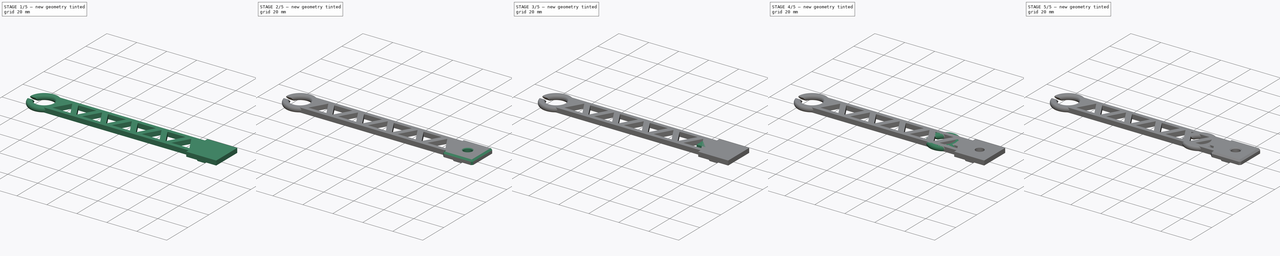
[diagram: build sequence overview — one tinted view per stage of 5, left to right]
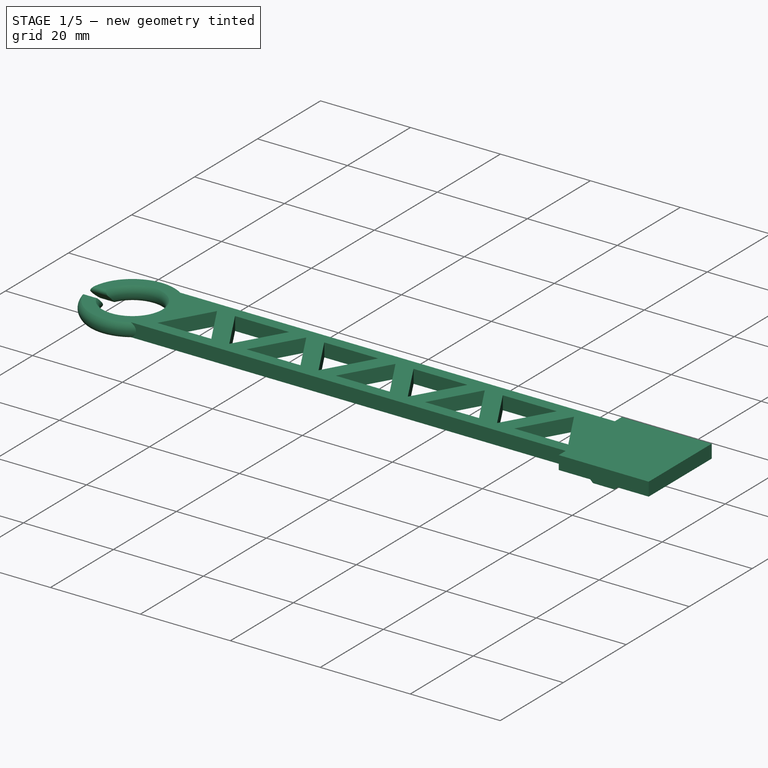
[diagram: stage 1 of 5 — iso view after this stage's code; geometry added in this stage tinted green]
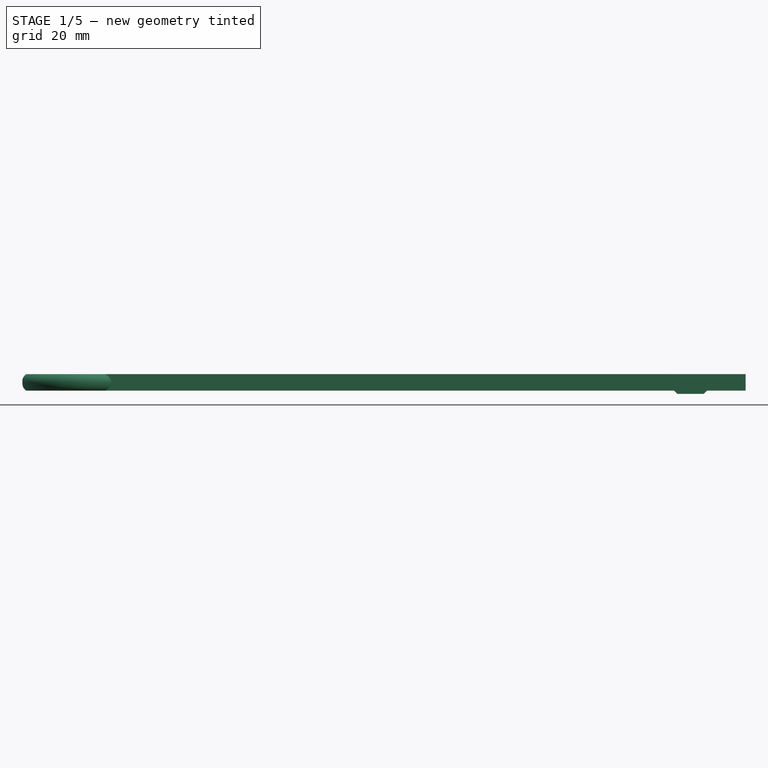
[diagram: stage 1 of 5 — front view after this stage's code; geometry added in this stage tinted green]
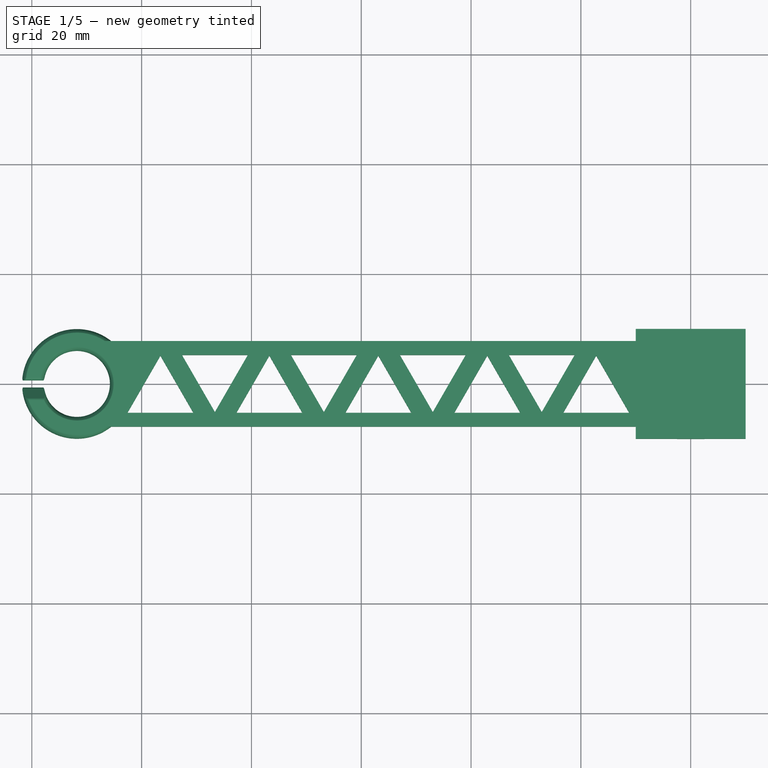
[diagram: stage 1 of 5 — top view after this stage's code; geometry added in this stage tinted green]
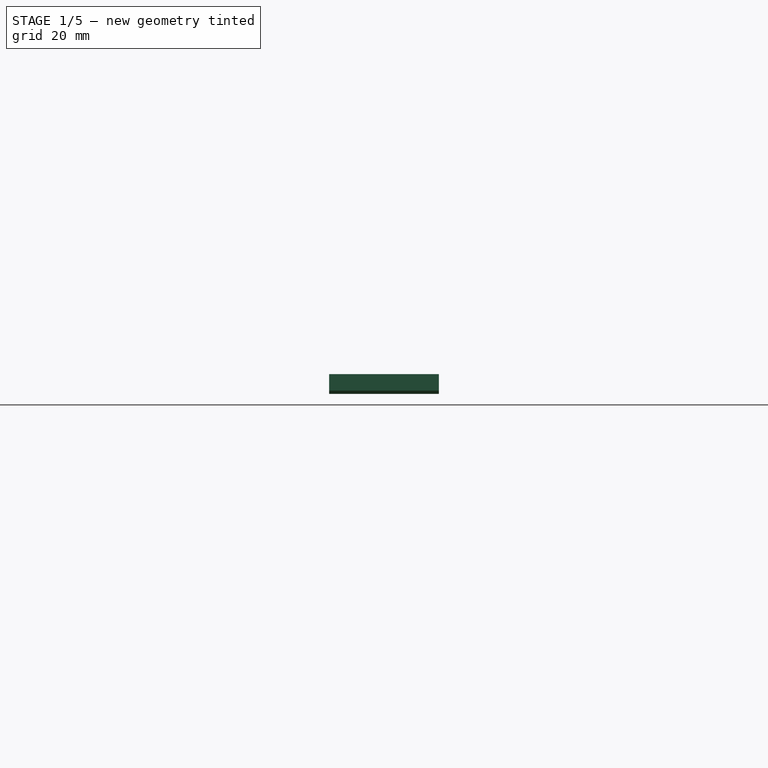
[diagram: stage 1 of 5 — right view after this stage's code; geometry added in this stage tinted green]
FCSTD DOCUMENT  (FreeCAD 0.18R4 (GitTag))
Label: _FilamentGuide2020
License: CreativeCommons Attribution
LicenseURL: http://creativecommons.org/licenses/by/4.0/
objects: Sketcher::SketchObject×12, PartDesign::Chamfer×6, PartDesign::Pad×4, PartDesign::Pocket×4, PartDesign::AdditivePipe×2, PartDesign::Fillet×2, PartDesign::Body×2
note: 42 computed .brp shape members not serialized (recipe doc carries the construction recipe); baked Part::Feature solids carry a one-line shape summary decoded from their .brp

FEATURE [PartDesign::Body] Body  label="FilamentGuide"
  Group = -> [Sketch,Pad,Sketch001,Pad001,Sketch002,Sketch003,AdditivePipe,Sketch004,Pocket,Sketch005,Pocket001,Chamfer,Chamfer001,Fillet,Chamfer002]
  Origin = -> Origin
  Tip = -> Chamfer002
FEATURE [Sketcher::SketchObject] Sketch007
  MapMode = 5
  Placement = pos=(0,0,0) rot=(1,0,0;1.5708rad)
  Support = -> [XZ_Plane001]
  sketch-geometry (8):
    g0: LineSegment StartX=-10 StartY=0 StartZ=0 EndX=-10 EndY=-3 EndZ=0
    g1: LineSegment StartX=-10 StartY=-3 StartZ=0 EndX=-3 EndY=-3 EndZ=0
    g2: LineSegment StartX=-3 StartY=-3 StartZ=0 EndX=-2.4 EndY=-3.6 EndZ=0
    g3: LineSegment StartX=-2.4 StartY=-3.6 StartZ=0 EndX=2.4 EndY=-3.6 EndZ=0
    g4: LineSegment StartX=2.4 StartY=-3.6 StartZ=0 EndX=3 EndY=-3 EndZ=0
    g5: LineSegment StartX=3 StartY=-3 StartZ=0 EndX=10 EndY=-3 EndZ=0
    g6: LineSegment StartX=10 StartY=-3 StartZ=0 EndX=10 EndY=0 EndZ=0
    g7: LineSegment StartX=10 StartY=0 StartZ=0 EndX=-10 EndY=0 EndZ=0
  constraints (22):
    c: PointOnObject(g0,g-1)
    c: Vertical(g0)
    c: Coincident(g0,g1)
    c: Horizontal(g1)
    c: Coincident(g1,g2)
    c: Coincident(g2,g3)
    c: Coincident(g3,g4)
    c: Coincident(g4,g5)
    c: Horizontal(g5)
    c: Coincident(g5,g6)
    c: Vertical(g6)
    c: Coincident(g6,g7)
    c: Coincident(g0,g7)
    c: Symmetric(g0,g6,g-2)
    c: Symmetric(g2,g3,g-2)
    c: DistanceY(g3,g5) = 0.6
    c: DistanceX(g0,g6) = 20
    c: Equal(g1,g5)
    c: Perpendicular(g4,g2)
    c: Angle(g3,g2) = 2.35619
    c: DistanceX(g1,g4) = 6
    c: DistanceY(g0,g0) = 3
FEATURE [Sketcher::SketchObject] Sketch008
  MapMode = 5
  Support = -> [XY_Plane001]
  sketch-geometry (1):
    g0: Circle CenterX=0 CenterY=0 CenterZ=0 NormalX=0 NormalY=0 NormalZ=1 AngleXU=0 Radius=2.7
  constraints (2):
    c: Coincident(g0,g-1)
    c: Diameter(g0) = 5.4
FEATURE [Sketcher::SketchObject] Sketch009
  MapMode = 5
  Support = -> [XY_Plane001]
  sketch-geometry (47):
    g0: LineSegment StartX=-110 StartY=7.8 StartZ=0 EndX=-10 EndY=7.8 EndZ=0
    g1: LineSegment StartX=-10 StartY=7.8 StartZ=0 EndX=-10 EndY=-7.8 EndZ=0
    g2: LineSegment StartX=-10 StartY=-7.8 StartZ=0 EndX=-110 EndY=-7.8 EndZ=0
    g3: LineSegment StartX=-90.575 StartY=-5.2641 StartZ=0 EndX=-96.575 EndY=5.1282 EndZ=0
    g4: LineSegment StartX=-96.575 StartY=5.1282 StartZ=0 EndX=-102.575 EndY=-5.2641 EndZ=0
    g5: LineSegment StartX=-102.575 StartY=-5.2641 StartZ=0 EndX=-90.575 EndY=-5.2641 EndZ=0
    g6: Circle [constr] CenterX=-96.575 CenterY=-1.8 CenterZ=0 NormalX=0 NormalY=0 NormalZ=1 AngleXU=0 Radius=6.9282
    g7: LineSegment StartX=-92.6534 StartY=5.2641 StartZ=0 EndX=-86.6534 EndY=-5.1282 EndZ=0
    g8: LineSegment StartX=-86.6534 StartY=-5.1282 StartZ=0 EndX=-80.6534 EndY=5.2641 EndZ=0
    g9: LineSegment StartX=-80.6534 StartY=5.2641 StartZ=0 EndX=-92.6534 EndY=5.2641 EndZ=0
    g10: Circle [constr] CenterX=-86.6534 CenterY=1.8 CenterZ=0 NormalX=0 NormalY=0 NormalZ=1 AngleXU=0 Radius=6.9282
    g11: LineSegment StartX=-70.7319 StartY=-5.2641 StartZ=0 EndX=-76.7319 EndY=5.1282 EndZ=0
    g12: LineSegment StartX=-76.7319 StartY=5.1282 StartZ=0 EndX=-82.7319 EndY=-5.2641 EndZ=0
    g13: LineSegment StartX=-82.7319 StartY=-5.2641 StartZ=0 EndX=-70.7319 EndY=-5.2641 EndZ=0
    g14: Circle [constr] CenterX=-76.7319 CenterY=-1.8 CenterZ=0 NormalX=0 NormalY=0 NormalZ=1 AngleXU=0 Radius=6.9282
    g15: LineSegment [constr] StartX=-103.983 StartY=-1.8 StartZ=0 EndX=-10 EndY=-1.8 EndZ=0
    g16: LineSegment [constr] StartX=-103.983 StartY=1.8 StartZ=0 EndX=-10 EndY=1.8 EndZ=0
    g17: ArcOfCircle CenterX=-111.778 CenterY=0 CenterZ=0 NormalX=0 NormalY=0 NormalZ=1 AngleXU=0 Radius=8 StartAngle=4.93646 EndAngle=7.62991
    g18: LineSegment StartX=-72.8104 StartY=5.2641 StartZ=0 EndX=-66.8104 EndY=-5.1282 EndZ=0
    g19: LineSegment StartX=-66.8104 StartY=-5.1282 StartZ=0 EndX=-60.8104 EndY=5.2641 EndZ=0
    g20: LineSegment StartX=-60.8104 StartY=5.2641 StartZ=0 EndX=-72.8104 EndY=5.2641 EndZ=0
    g21: Circle [constr] CenterX=-66.8104 CenterY=1.8 CenterZ=0 NormalX=0 NormalY=0 NormalZ=1 AngleXU=0 Radius=6.9282
    g22: LineSegment StartX=-56.8888 StartY=5.1282 StartZ=0 EndX=-62.8888 EndY=-5.2641 EndZ=0
    g23: LineSegment StartX=-62.8888 StartY=-5.2641 StartZ=0 EndX=-50.8888 EndY=-5.2641 EndZ=0
    g24: LineSegment StartX=-50.8888 StartY=-5.2641 StartZ=0 EndX=-56.8888 EndY=5.1282 EndZ=0
    g25: Circle [constr] CenterX=-56.8888 CenterY=-1.8 CenterZ=0 NormalX=0 NormalY=0 NormalZ=1 AngleXU=0 Radius=6.9282
    g26: LineSegment StartX=-52.9673 StartY=5.2641 StartZ=0 EndX=-46.9673 EndY=-5.1282 EndZ=0
    g27: LineSegment StartX=-46.9673 StartY=-5.1282 StartZ=0 EndX=-40.9673 EndY=5.2641 EndZ=0
    g28: LineSegment StartX=-40.9673 StartY=5.2641 StartZ=0 EndX=-52.9673 EndY=5.2641 EndZ=0
    g29: Circle [constr] CenterX=-46.9673 CenterY=1.8 CenterZ=0 NormalX=0 NormalY=0 NormalZ=1 AngleXU=0 Radius=6.9282
    g30: LineSegment StartX=-37.0457 StartY=5.1282 StartZ=0 EndX=-43.0457 EndY=-5.2641 EndZ=0
    g31: LineSegment StartX=-43.0457 StartY=-5.2641 StartZ=0 EndX=-31.0457 EndY=-5.2641 EndZ=0
    g32: LineSegment StartX=-31.0457 StartY=-5.2641 StartZ=0 EndX=-37.0457 EndY=5.1282 EndZ=0
    g33: Circle [constr] CenterX=-37.0457 CenterY=-1.8 CenterZ=0 NormalX=0 NormalY=0 NormalZ=1 AngleXU=0 Radius=6.9282
    g34: LineSegment StartX=-33.1242 StartY=5.2641 StartZ=0 EndX=-27.1242 EndY=-5.1282 EndZ=0
    g35: LineSegment StartX=-27.1242 StartY=-5.1282 StartZ=0 EndX=-21.1242 EndY=5.2641 EndZ=0
    g36: LineSegment StartX=-21.1242 StartY=5.2641 StartZ=0 EndX=-33.1242 EndY=5.2641 EndZ=0
    g37: Circle [constr] CenterX=-27.1242 CenterY=1.8 CenterZ=0 NormalX=0 NormalY=0 NormalZ=1 AngleXU=0 Radius=6.9282
    g38: LineSegment StartX=-11.2027 StartY=-5.2641 StartZ=0 EndX=-17.2027 EndY=5.1282 EndZ=0
    g39: LineSegment StartX=-17.2027 StartY=5.1282 StartZ=0 EndX=-23.2027 EndY=-5.2641 EndZ=0
    g40: LineSegment StartX=-23.2027 StartY=-5.2641 StartZ=0 EndX=-11.2027 EndY=-5.2641 EndZ=0
    g41: Circle [constr] CenterX=-17.2027 CenterY=-1.8 CenterZ=0 NormalX=0 NormalY=0 NormalZ=1 AngleXU=0 Radius=6.9282
    g42: GeomPoint X=-103.778 Y=0 Z=0
    g43: GeomPoint X=-99.5357 Y=0 Z=0
    g44: GeomPoint X=-14.2419 Y=0 Z=0
    g45: LineSegment [constr] StartX=-56.8888 StartY=7.8 StartZ=0 EndX=-56.8888 EndY=-7.8 EndZ=0
    g46: GeomPoint X=-10 Y=0 Z=0
  constraints (137):
    c: Coincident(g0,g1)
    c: Coincident(g1,g2)
    c: Horizontal(g0)
    c: Horizontal(g2)
    c: DistanceX(g0,g-1) = 10
    c: DistanceY(g1,g1) = 15.6
    c: Symmetric(g1,g0,g-1)
    c: DistanceX(g0,g0) = 100
    c: Coincident(g3,g4)
    c: Coincident(g4,g5)
    c: Coincident(g5,g3)
    c: Equal(g3,g4)
    c: Equal(g3,g5)
    c: PointOnObject(g3,g6)
    c: PointOnObject(g4,g6)
    c: PointOnObject(g5,g6)
    c: Coincident(g7,g8)
    c: Coincident(g8,g9)
    c: Coincident(g9,g7)
    c: Equal(g7,g8)
    c: Equal(g7,g9)
    c: PointOnObject(g7,g10)
    c: PointOnObject(g8,g10)
    c: PointOnObject(g9,g10)
    c: Coincident(g11,g12)
    c: Coincident(g12,g13)
    c: Coincident(g13,g11)
    c: Equal(g11,g12)
    c: Equal(g11,g13)
    c: PointOnObject(g11,g14)
    c: PointOnObject(g12,g14)
    c: PointOnObject(g13,g14)
    c: Equal(g6,g10)
    c: Equal(g10,g14)
    c: Horizontal(g5)
    c: Horizontal(g9)
    c: Horizontal(g13)
    c: PointOnObject(g15,g1)
    c: Horizontal(g15)
    c: PointOnObject(g6,g15)
    c: PointOnObject(g16,g1)
    c: Horizontal(g16)
    c: Symmetric(g15,g16,g-1)
    c: Coincident(g17,g0)
    c: Coincident(g17,g2)
    c: PointOnObject(g17,g-1)
    c: PointOnObject(g15,g17)
    c: DistanceY(g15,g16) = 3.6
    c: DistanceX(g5,g5) = 12
    c: PointOnObject(g10,g16)
    c: Tangent(g3,g10)
    c: PointOnObject(g14,g15)
    c: Coincident(g18,g19)
    c: Coincident(g19,g20)
    c: Coincident(g20,g18)
    c: Equal(g18,g19)
    c: Equal(g18,g20)
    c: PointOnObject(g18,g21)
    c: PointOnObject(g19,g21)
    c: PointOnObject(g20,g21)
    c: Coincident(g22,g23)
    c: Coincident(g23,g24)
    c: Coincident(g24,g22)
    c: Equal(g22,g23)
    c: Equal(g22,g24)
    c: PointOnObject(g22,g25)
    c: PointOnObject(g23,g25)
    c: PointOnObject(g24,g25)
    c: Coincident(g26,g27)
    c: Coincident(g27,g28)
    c: Coincident(g28,g26)
    c: Equal(g26,g27)
    c: Equal(g26,g28)
    c: PointOnObject(g26,g29)
    c: PointOnObject(g27,g29)
    c: PointOnObject(g28,g29)
    c: Equal(g14,g21)
    c: Equal(g21,g25)
    c: Equal(g25,g29)
    c: Horizontal(g23)
    c: Horizontal(g20)
    c: PointOnObject(g21,g16)
    c: PointOnObject(g25,g15)
    c: PointOnObject(g29,g16)
    c: Tangent(g21,g11)
    c: Tangent(g29,g24)
    c: Tangent(g14,g8)
    c: Tangent(g19,g25)
    c: Coincident(g30,g31)
    c: Coincident(g31,g32)
    c: Coincident(g32,g30)
    c: Equal(g30,g31)
    c: Equal(g30,g32)
    c: PointOnObject(g30,g33)
    c: PointOnObject(g31,g33)
    c: PointOnObject(g32,g33)
    c: Coincident(g34,g35)
    c: Coincident(g35,g36)
    c: Coincident(g36,g34)
    c: Equal(g34,g35)
    c: Equal(g34,g36)
    c: PointOnObject(g34,g37)
    c: PointOnObject(g35,g37)
    c: PointOnObject(g36,g37)
    c: Horizontal(g31)
    c: Horizontal(g36)
    c: PointOnObject(g33,g15)
    c: Tangent(g33,g27)
    c: Equal(g29,g33)
    c: Equal(g33,g37)
    c: PointOnObject(g37,g16)
    c: Tangent(g37,g32)
    c: Horizontal(g28)
    c: Coincident(g38,g39)
    c: Coincident(g39,g40)
    c: Coincident(g40,g38)
    c: Equal(g38,g39)
    c: Equal(g38,g40)
    c: PointOnObject(g38,g41)
    c: PointOnObject(g39,g41)
    c: PointOnObject(g40,g41)
    c: Equal(g37,g41)
    c: Horizontal(g40)
    c: PointOnObject(g41,g15)
    c: Diameter(g17) = 16
    c: Tangent(g41,g35)
    c: PointOnObject(g42,g17)
    c: PointOnObject(g42,g-1)
    c: PointOnObject(g43,g4)
    c: PointOnObject(g43,g-1)
    c: PointOnObject(g44,g38)
    c: PointOnObject(g44,g-1)
    c: PointOnObject(g45,g0)
    c: PointOnObject(g45,g2)
    c: Symmetric(g43,g44,g45)
    c: PointOnObject(g46,g1)
    c: Symmetric(g46,g42,g45)
FEATURE [Sketcher::SketchObject] Sketch006
  AttachmentOffset = pos=(0,0,-1.5) rot=(0,0,1;0rad)
  ExternalGeometry = -> [Sketch009]
  MapMode = 5
  Placement = pos=(0,0,-1.5) rot=(0,0,1;0rad)
  Support = -> [XY_Plane001]
  sketch-geometry (1):
    g0: ArcOfCircle CenterX=-111.778 CenterY=0 CenterZ=0 NormalX=0 NormalY=0 NormalZ=1 AngleXU=0 Radius=8 StartAngle=0 EndAngle=6.28319
  constraints (4):
    c: PointOnObject(g0,g-1)
    c: PointOnObject(g0,g-1)
    c: Diameter(g0) = 16
    c: Coincident(g-3,g0)
FEATURE [Sketcher::SketchObject] Sketch010
  ExternalGeometry = -> [Sketch006]
  MapMode = 5
  Placement = pos=(0,0,0) rot=(1,0,0;1.5708rad)
  Support = -> [XZ_Plane001]
  sketch-geometry (4):
    g0: ArcOfCircle CenterX=-103.778 CenterY=-1.5 CenterZ=0 NormalX=0 NormalY=0 NormalZ=1 AngleXU=0 Radius=2 StartAngle=2.29353 EndAngle=3.98965
    g1: ArcOfCircle CenterX=-103.778 CenterY=-1.5 CenterZ=0 NormalX=0 NormalY=0 NormalZ=1 AngleXU=0 Radius=2 StartAngle=5.43512 EndAngle=7.13125
    g2: LineSegment StartX=-105.101 StartY=-9.286e-13 StartZ=0 EndX=-102.455 EndY=-9.286e-13 EndZ=0
    g3: LineSegment StartX=-102.455 StartY=-3 StartZ=0 EndX=-105.101 EndY=-3 EndZ=0
  constraints (12):
    c: Coincident(g1,g0)
    c: Coincident(g2,g1)
    c: Horizontal(g2)
    c: Coincident(g3,g1)
    c: Horizontal(g3)
    c: Coincident(g3,g0)
    c: Coincident(g2,g0)
    c: Equal(g2,g3)
    c: DistanceY(g0,g0) = 3
    c: Equal(g1,g0)
    c: Diameter(g1) = 4
    c: Coincident(g0,g-3)
FEATURE [Sketcher::SketchObject] Sketch011
  AttachmentOffset = pos=(0,0,-122) rot=(1,0,0;3.14159rad)
  MapMode = 5
  Placement = pos=(-122,2.71e-14,-2.71e-14) rot=(0.57735,0.57735,-0.57735;4.18879rad)
  Support = -> [YZ_Plane001]
  expr: AttachmentOffset.Base.z = (Sketch001.Constraints[7] + 22mm) * -1
  sketch-geometry (19):
    g0: LineSegment StartX=2.59806 StartY=2.82526 StartZ=0 EndX=0.796056 EndY=1.02326 EndZ=0
    g1: LineSegment StartX=-2.59806 StartY=0.174736 StartZ=0 EndX=-0.796056 EndY=1.97674 EndZ=0
    g2: LineSegment StartX=3.02232 StartY=3.001 StartZ=0 EndX=4.901 EndY=3.001 EndZ=0
    g3: LineSegment StartX=4.901 StartY=3.001 StartZ=0 EndX=4.901 EndY=5.001 EndZ=0
    g4: LineSegment StartX=4.901 StartY=5.001 StartZ=0 EndX=-3.099 EndY=5.001 EndZ=0
    g5: LineSegment StartX=-3.099 StartY=5.001 StartZ=0 EndX=-3.099 EndY=3.001 EndZ=0
    g6: LineSegment StartX=-3.099 StartY=3.001 StartZ=0 EndX=-1.22032 EndY=3.001 EndZ=0
    g7: LineSegment StartX=1.22032 StartY=-0.001 StartZ=0 EndX=3.099 EndY=-0.001 EndZ=0
    g8: LineSegment StartX=3.099 StartY=-0.001 StartZ=0 EndX=3.099 EndY=-2.001 EndZ=0
    g9: LineSegment StartX=3.099 StartY=-2.001 StartZ=0 EndX=-4.901 EndY=-2.001 EndZ=0
    g10: LineSegment StartX=-4.901 StartY=-2.001 StartZ=0 EndX=-4.901 EndY=-0.001 EndZ=0
    g11: LineSegment StartX=-4.901 StartY=-0.001 StartZ=0 EndX=-3.02232 EndY=-0.001 EndZ=0
    g12: ArcOfCircle CenterX=-1.22032 CenterY=2.401 CenterZ=0 NormalX=0 NormalY=0 NormalZ=1 AngleXU=0 Radius=0.6 StartAngle=5.49779 EndAngle=7.85398
    g13: ArcOfCircle CenterX=3.02232 CenterY=2.401 CenterZ=0 NormalX=0 NormalY=0 NormalZ=1 AngleXU=0 Radius=0.6 StartAngle=1.5708 EndAngle=2.35619
    g14: ArcOfCircle CenterX=1.22032 CenterY=0.599 CenterZ=0 NormalX=0 NormalY=0 NormalZ=1 AngleXU=0 Radius=0.6 StartAngle=2.35619 EndAngle=4.71239
    g15: ArcOfCircle CenterX=-3.02232 CenterY=0.599 CenterZ=0 NormalX=0 NormalY=0 NormalZ=1 AngleXU=0 Radius=0.6 StartAngle=4.71239 EndAngle=5.49779
    g16: LineSegment [constr] StartX=0.796056 StartY=1.02326 StartZ=0 EndX=-0.476736 EndY=2.29606 EndZ=0
    g17: LineSegment [constr] StartX=-1.22032 StartY=2.401 StartZ=0 EndX=1.22032 EndY=0.599 EndZ=0
    g18: GeomPoint X=0 Y=1.5 Z=0
  constraints (50):
    c: Parallel(g1,g0)
    c: Angle(g-1,g0) = 0.785398
    c: Horizontal(g2)
    c: Coincident(g2,g3)
    c: Vertical(g3)
    c: Coincident(g3,g4)
    c: Horizontal(g4)
    c: Coincident(g4,g5)
    c: Coincident(g5,g6)
    c: Horizontal(g6)
    c: Vertical(g5)
    c: Equal(g3,g5)
    c: Horizontal(g7)
    c: Coincident(g7,g8)
    c: Vertical(g8)
    c: Coincident(g8,g9)
    c: Horizontal(g9)
    c: Coincident(g9,g10)
    c: Vertical(g10)
    c: Coincident(g10,g11)
    c: Equal(g3,g8)
    c: Equal(g8,g10)
    c: Equal(g6,g2)
    c: Equal(g2,g7)
    c: Equal(g7,g11)
    c: Equal(g9,g4)
    c: DistanceY(g10,g5) = 3.002
    c: Tangent(g6,g12) = 1.5708
    c: Tangent(g1,g12) = -1.5708
    c: Tangent(g0,g13) = -1.5708
    c: Tangent(g2,g13) = 1.5708
    c: Tangent(g7,g14) = -1.5708
    c: Tangent(g0,g14) = -1.5708
    c: Tangent(g1,g15) = -1.5708
    c: Tangent(g11,g15) = -1.5708
    c: Horizontal(g11)
    c: Coincident(g16,g0)
    c: PointOnObject(g16,g1)
    c: Perpendicular(g16,g1)
    c: Equal(g12,g13)
    c: Equal(g13,g14)
    c: Coincident(g17,g12)
    c: Coincident(g17,g14)
    c: Symmetric(g14,g12,g18)
    c: PointOnObject(g18,g-2)
    c: DistanceY(g-1,g18) = 1.5
    c: Distance(g16) = 1.8
    c: DistanceX(g4,g4) = 8
    c: DistanceY(g3,g3) = 2
    c: Radius(g13) = 0.6
FEATURE [PartDesign::Pad] Pad003
  Length = 20
  Length2 = 100
  Midplane = true
  Placement = pos=(0,0,0) rot=(1,0,0;1.5708rad)
  Profile = -> Sketch007
  Type = 0
FEATURE [PartDesign::Pad] Pad002
  BaseFeature = -> Pad003
  Length = 3
  Length2 = 100
  Placement = pos=(0,0,0) rot=(1,0,0;1.5708rad)
  Profile = -> Sketch009
  Reversed = true
  Type = 0
FEATURE [PartDesign::AdditivePipe] AdditivePipe001
  AuxilleryCurvelinear = true
  AuxillerySpineTangent = false
  BaseFeature = -> Pad002
  Binormal = (0,0,0)
  Mode = 0
  Placement = pos=(0,0,0) rot=(1,0,0;1.5708rad)
  Profile = -> Sketch010
  Spine = -> Sketch006
  SpineTangent = false
  Transformation = 0
  Transition = 0
FEATURE [PartDesign::Pocket] Pocket003
  BaseFeature = -> AdditivePipe001
  Length = 6
  Length2 = 100
  Placement = pos=(0,0,0) rot=(1,0,0;1.5708rad)
  Profile = -> Sketch011
  Type = 0
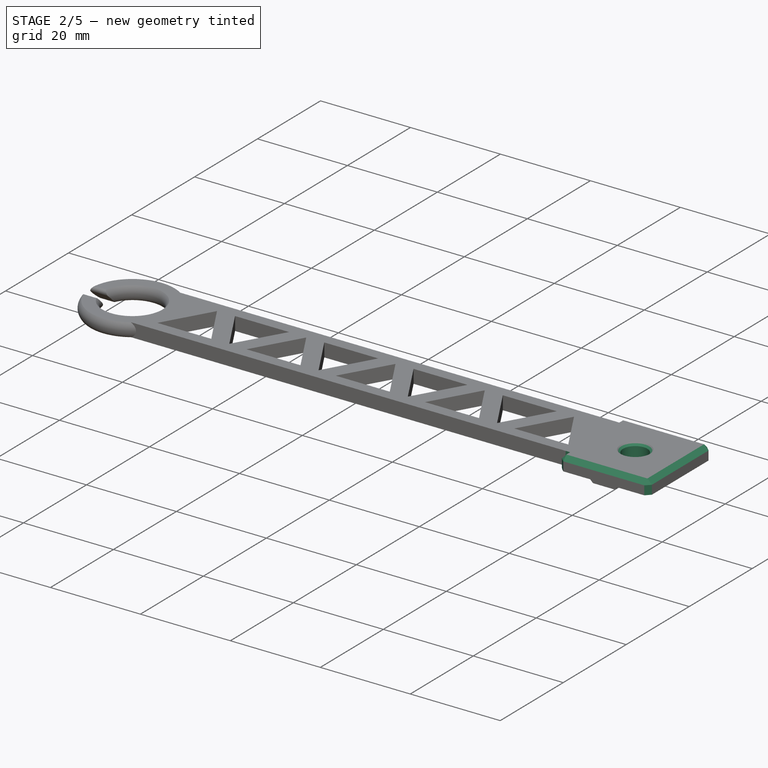
[diagram: stage 2 of 5 — iso view after this stage's code; geometry added in this stage tinted green]
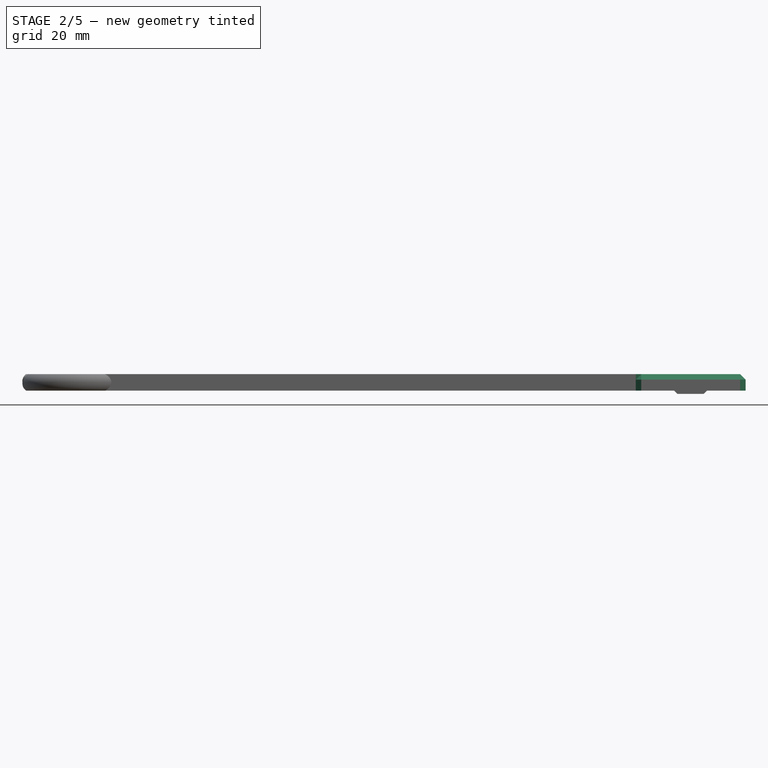
[diagram: stage 2 of 5 — front view after this stage's code; geometry added in this stage tinted green]
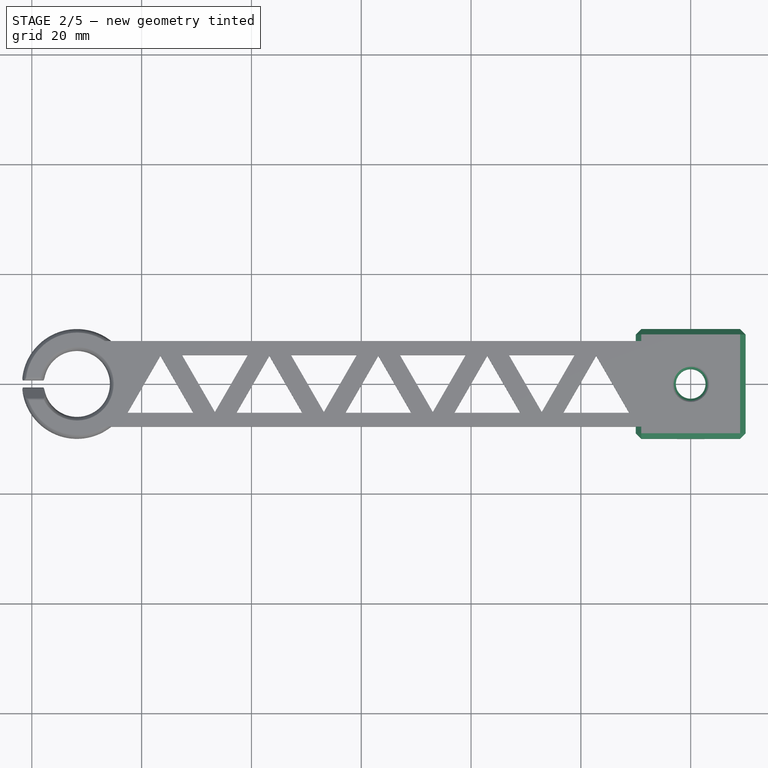
[diagram: stage 2 of 5 — top view after this stage's code; geometry added in this stage tinted green]
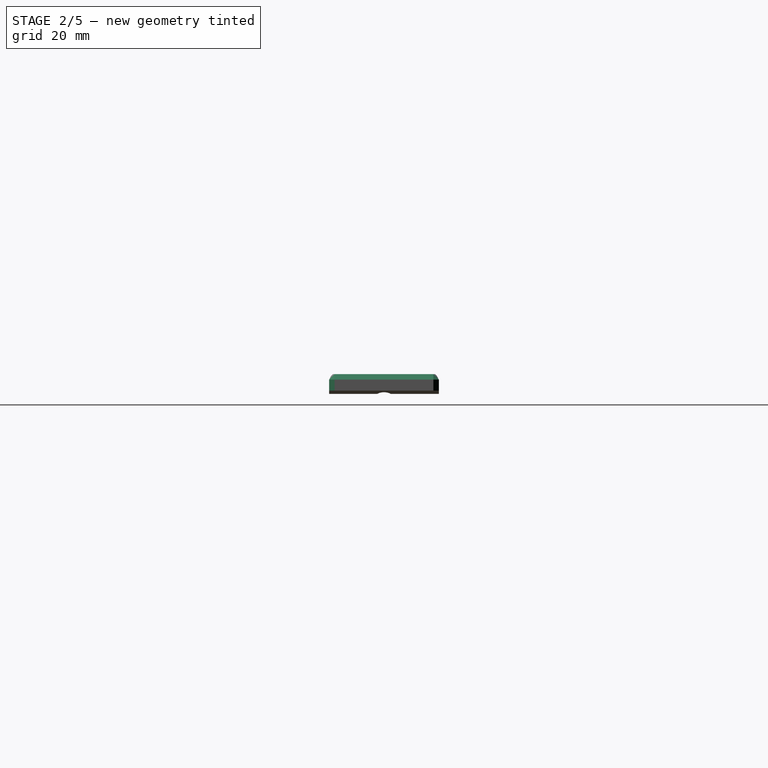
[diagram: stage 2 of 5 — right view after this stage's code; geometry added in this stage tinted green]
FEATURE [PartDesign::Pocket] Pocket002
  BaseFeature = -> Pocket003
  Length = 5
  Length2 = 100
  Placement = pos=(0,0,0) rot=(1,0,0;1.5708rad)
  Profile = -> Sketch008
  Type = 1
FEATURE [PartDesign::Chamfer] Chamfer005
  Base = -> Pocket002 [Edge23]
  BaseFeature = -> Pocket002
  Placement = pos=(0,0,0) rot=(1,0,0;1.5708rad)
  Size = 0.6
FEATURE [PartDesign::Chamfer] Chamfer003
  Base = -> Chamfer005 [Edge19,Edge13,Edge11,Edge12,Edge2,Edge4,Edge3,Edge5,Edge6]
  BaseFeature = -> Chamfer005
  Placement = pos=(0,0,0) rot=(1,0,0;1.5708rad)
  Size = 1
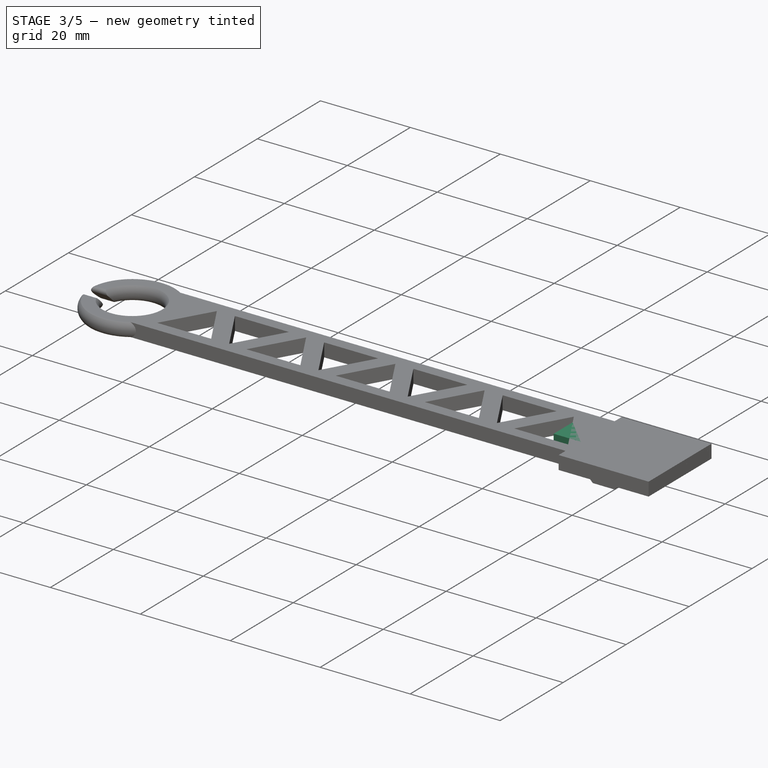
[diagram: stage 3 of 5 — iso view after this stage's code; geometry added in this stage tinted green]
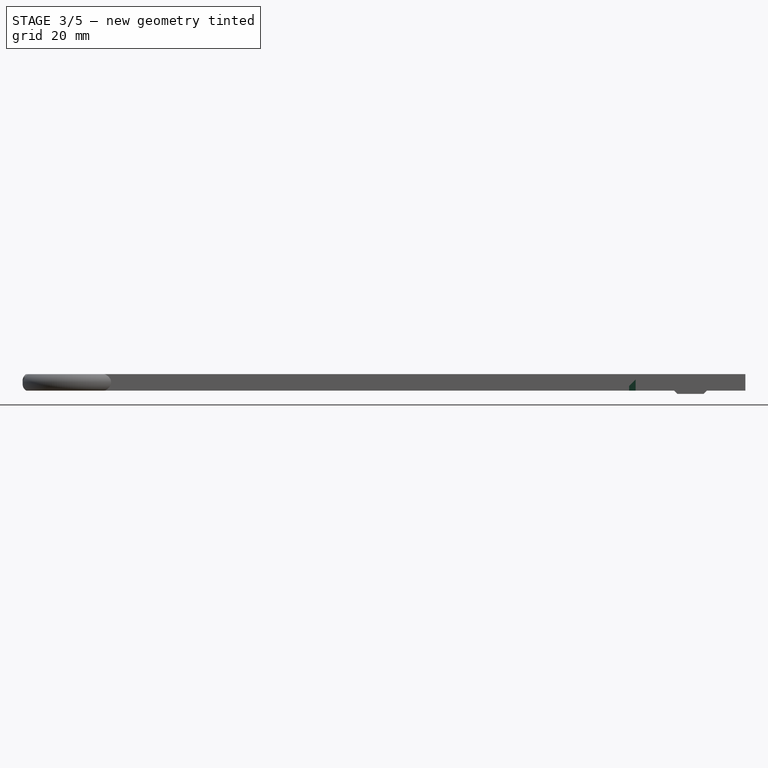
[diagram: stage 3 of 5 — front view after this stage's code; geometry added in this stage tinted green]
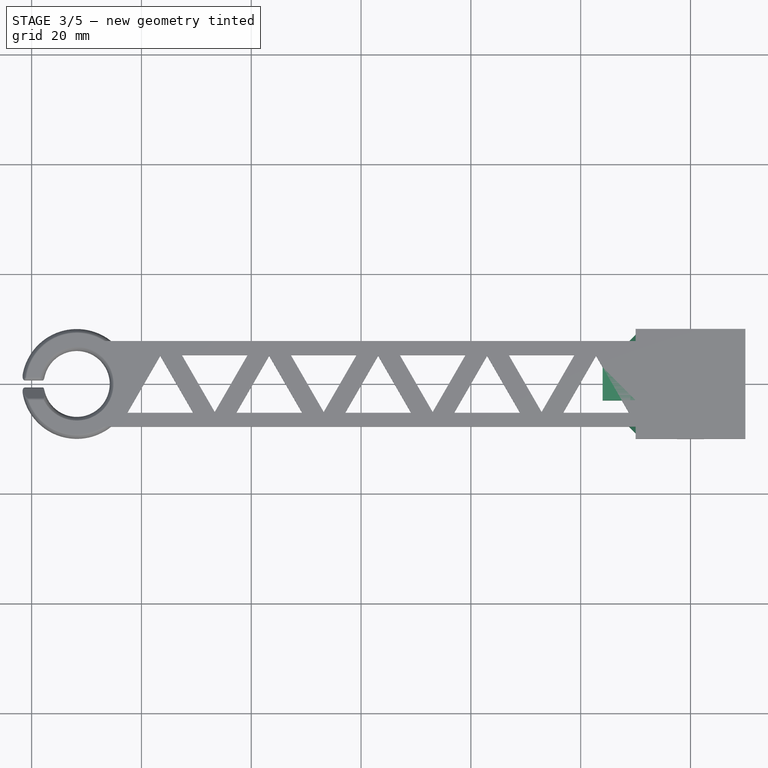
[diagram: stage 3 of 5 — top view after this stage's code; geometry added in this stage tinted green]
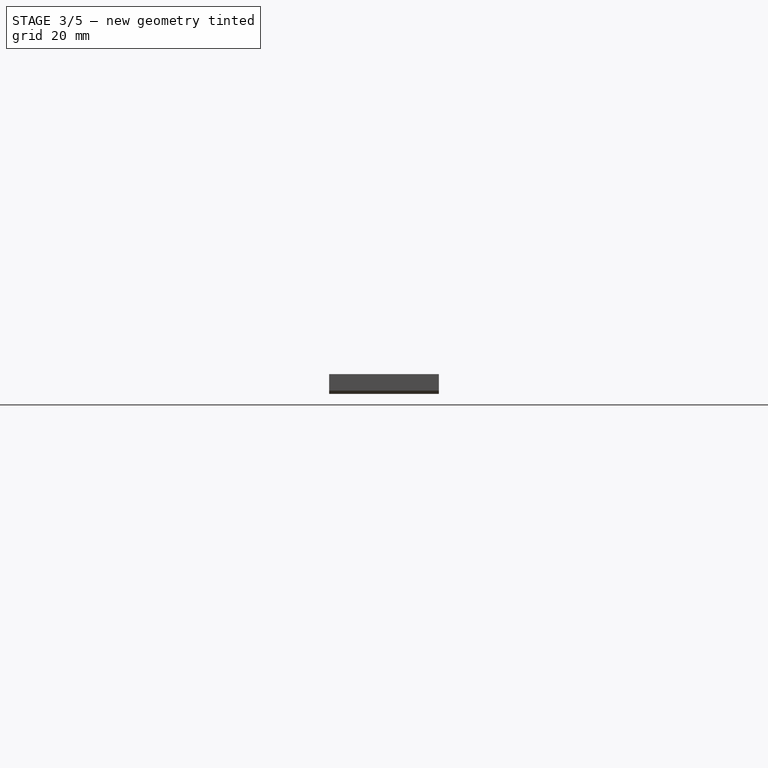
[diagram: stage 3 of 5 — right view after this stage's code; geometry added in this stage tinted green]
FEATURE [Sketcher::SketchObject] Sketch
  MapMode = 5
  Placement = pos=(0,0,0) rot=(1,0,0;1.5708rad)
  Support = -> [XZ_Plane]
  sketch-geometry (8):
    g0: LineSegment StartX=-10 StartY=0 StartZ=0 EndX=-10 EndY=-3 EndZ=0
    g1: LineSegment StartX=-10 StartY=-3 StartZ=0 EndX=-3 EndY=-3 EndZ=0
    g2: LineSegment StartX=-3 StartY=-3 StartZ=0 EndX=-2.4 EndY=-3.6 EndZ=0
    g3: LineSegment StartX=-2.4 StartY=-3.6 StartZ=0 EndX=2.4 EndY=-3.6 EndZ=0
    g4: LineSegment StartX=2.4 StartY=-3.6 StartZ=0 EndX=3 EndY=-3 EndZ=0
    g5: LineSegment StartX=3 StartY=-3 StartZ=0 EndX=10 EndY=-3 EndZ=0
    g6: LineSegment StartX=10 StartY=-3 StartZ=0 EndX=10 EndY=0 EndZ=0
    g7: LineSegment StartX=10 StartY=0 StartZ=0 EndX=-10 EndY=0 EndZ=0
  constraints (22):
    c: PointOnObject(g0,g-1)
    c: Vertical(g0)
    c: Coincident(g0,g1)
    c: Horizontal(g1)
    c: Coincident(g1,g2)
    c: Coincident(g2,g3)
    c: Coincident(g3,g4)
    c: Coincident(g4,g5)
    c: Horizontal(g5)
    c: Coincident(g5,g6)
    c: Vertical(g6)
    c: Coincident(g6,g7)
    c: Coincident(g0,g7)
    c: Symmetric(g0,g6,g-2)
    c: Symmetric(g2,g3,g-2)
    c: DistanceY(g3,g5) = 0.6
    c: DistanceX(g0,g6) = 20
    c: Equal(g1,g5)
    c: Perpendicular(g4,g2)
    c: Angle(g3,g2) = 2.35619
    c: DistanceX(g1,g4) = 6
    c: DistanceY(g0,g0) = 3
FEATURE [PartDesign::Pad] Pad
  Length = 20
  Length2 = 100
  Midplane = true
  Placement = pos=(0,0,0) rot=(1,0,0;1.5708rad)
  Profile = -> Sketch
  Type = 0
FEATURE [Sketcher::SketchObject] Sketch001
  MapMode = 5
  Support = -> [XY_Plane]
  sketch-geometry (4):
    g0: LineSegment StartX=-16 StartY=3 StartZ=0 EndX=-10 EndY=3 EndZ=0
    g1: LineSegment StartX=-10 StartY=3 StartZ=0 EndX=-10 EndY=-3 EndZ=0
    g2: LineSegment StartX=-10 StartY=-3 StartZ=0 EndX=-16 EndY=-3 EndZ=0
    g3: LineSegment StartX=-16 StartY=-3 StartZ=0 EndX=-16 EndY=3 EndZ=0
  constraints (11):
    c: Coincident(g0,g1)
    c: Coincident(g1,g2)
    c: Coincident(g2,g3)
    c: Coincident(g3,g0)
    c: Horizontal(g0)
    c: Horizontal(g2)
    c: Vertical(g3)
    c: DistanceX(g0,g-1) = 10
    c: DistanceY(g1,g1) = 6
    c: Symmetric(g1,g0,g-1)
    c: Equal(g1,g0)
FEATURE [PartDesign::Pad] Pad001
  BaseFeature = -> Pad
  Length = 3
  Length2 = 100
  Placement = pos=(0,0,0) rot=(1,0,0;1.5708rad)
  Profile = -> Sketch001
  Reversed = true
  Type = 0
FEATURE [PartDesign::Chamfer] Chamfer004
  Base = -> Chamfer003 [Edge10,Edge47]
  BaseFeature = -> Chamfer003
  Placement = pos=(0,0,0) rot=(1,0,0;1.5708rad)
  Size = 1.18
FEATURE [PartDesign::Fillet] Fillet001
  Base = -> Chamfer004 [Edge168,Edge47]
  BaseFeature = -> Chamfer004
  Placement = pos=(0,0,0) rot=(1,0,0;1.5708rad)
  Radius = 0.29
FEATURE [PartDesign::Body] Body001  label="FilamentGuide001"
  Group = -> [Sketch007,Pad003,Sketch009,Pad002,Sketch006,Sketch010,AdditivePipe001,Sketch011,Pocket003,Sketch008,Pocket002,Chamfer005,Chamfer003,Chamfer004,Fillet001]
  Origin = -> Origin001
  Tip = -> Fillet001
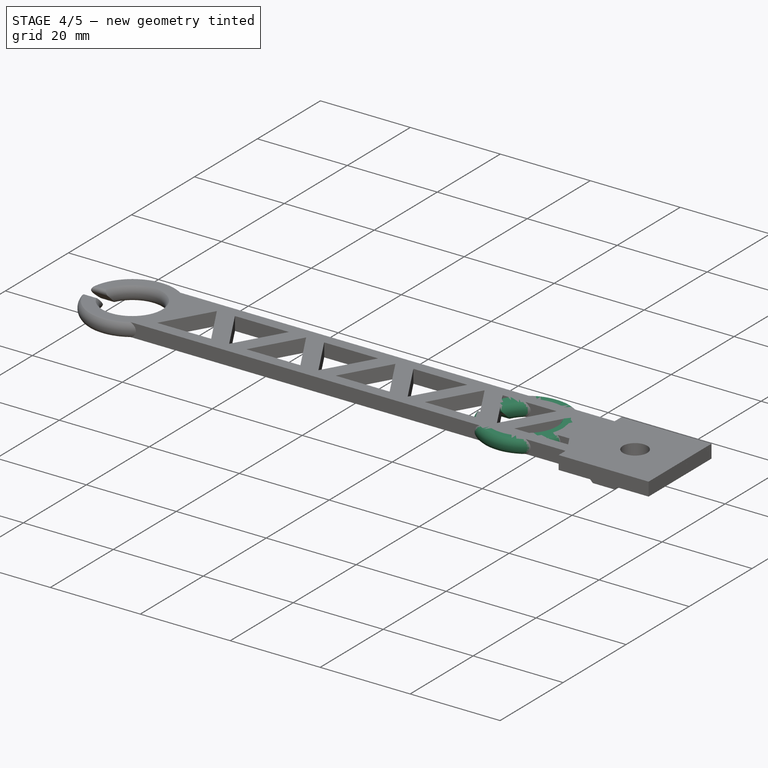
[diagram: stage 4 of 5 — iso view after this stage's code; geometry added in this stage tinted green]
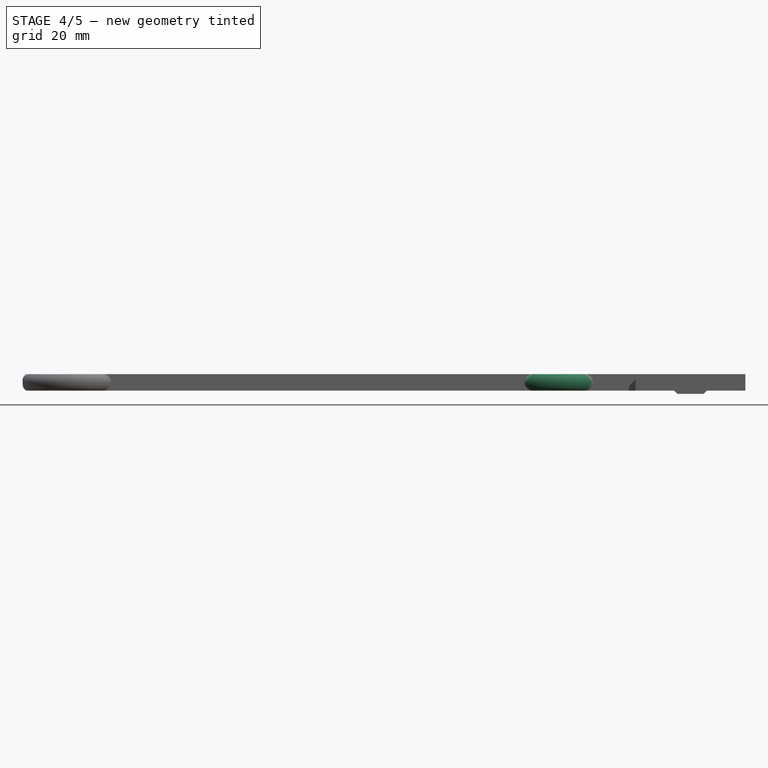
[diagram: stage 4 of 5 — front view after this stage's code; geometry added in this stage tinted green]
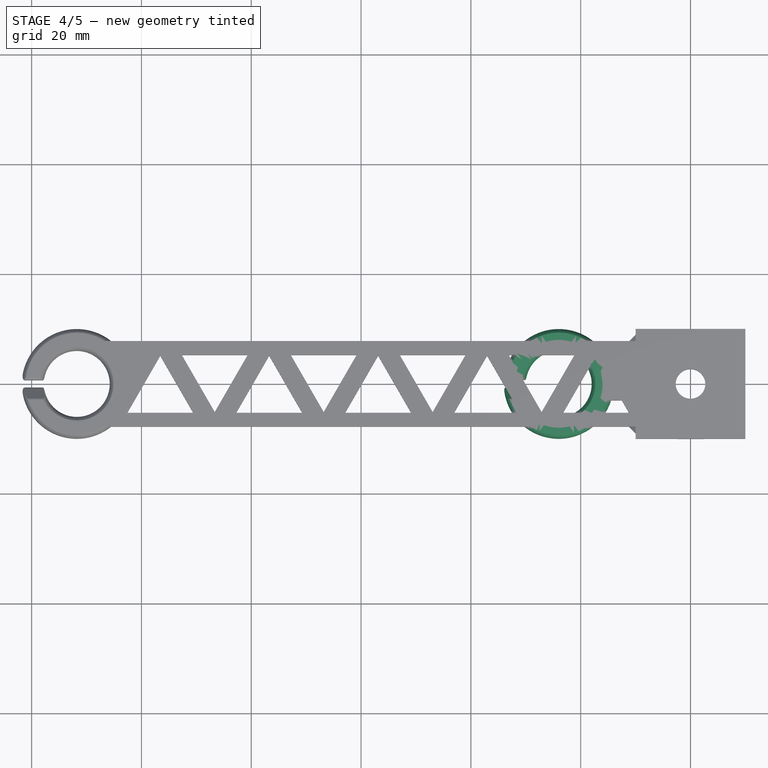
[diagram: stage 4 of 5 — top view after this stage's code; geometry added in this stage tinted green]
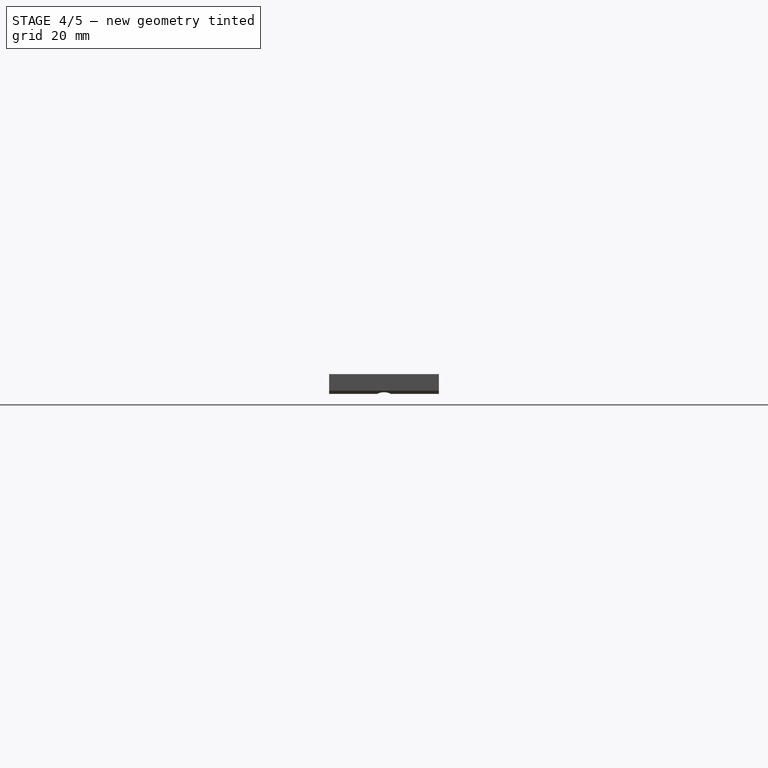
[diagram: stage 4 of 5 — right view after this stage's code; geometry added in this stage tinted green]
FEATURE [Sketcher::SketchObject] Sketch002
  AttachmentOffset = pos=(0,0,-1.5) rot=(0,0,1;0rad)
  ExternalGeometry = -> [Sketch001]
  MapMode = 5
  Placement = pos=(0,0,-1.5) rot=(0,0,1;0rad)
  Support = -> [XY_Plane]
  sketch-geometry (1):
    g0: ArcOfCircle CenterX=-24 CenterY=0 CenterZ=0 NormalX=0 NormalY=0 NormalZ=1 AngleXU=0 Radius=8 StartAngle=1e-16 EndAngle=6.28319
  constraints (5):
    c: PointOnObject(g0,g-1)
    c: PointOnObject(g0,g-1)
    c: PointOnObject(g0,g-1)
    c: Tangent(g0,g-3)
    c: Diameter(g0) = 16
FEATURE [Sketcher::SketchObject] Sketch003
  ExternalGeometry = -> [Sketch002]
  MapMode = 5
  Placement = pos=(0,0,0) rot=(1,0,0;1.5708rad)
  Support = -> [XZ_Plane]
  sketch-geometry (4):
    g0: ArcOfCircle CenterX=-16 CenterY=-1.5 CenterZ=0 NormalX=0 NormalY=0 NormalZ=1 AngleXU=0 Radius=2 StartAngle=2.29353 EndAngle=3.98965
    g1: ArcOfCircle CenterX=-16 CenterY=-1.5 CenterZ=0 NormalX=0 NormalY=0 NormalZ=1 AngleXU=0 Radius=2 StartAngle=5.43512 EndAngle=7.13125
    g2: LineSegment StartX=-17.3229 StartY=-3e-16 StartZ=0 EndX=-14.6771 EndY=-3e-16 EndZ=0
    g3: LineSegment StartX=-17.3229 StartY=-3 StartZ=0 EndX=-14.6771 EndY=-3 EndZ=0
  constraints (12):
    c: Coincident(g1,g0)
    c: Coincident(g2,g0)
    c: Coincident(g2,g1)
    c: Horizontal(g2)
    c: Coincident(g3,g1)
    c: Horizontal(g3)
    c: Coincident(g3,g0)
    c: Equal(g0,g1)
    c: Equal(g2,g3)
    c: DistanceY(g1,g1) = 3
    c: Diameter(g1) = 4
    c: Coincident(g-3,g0)
FEATURE [PartDesign::AdditivePipe] AdditivePipe
  AuxilleryCurvelinear = true
  AuxillerySpineTangent = false
  BaseFeature = -> Pad001
  Binormal = (0,0,0)
  Mode = 0
  Placement = pos=(0,0,0) rot=(1,0,0;1.5708rad)
  Profile = -> Sketch003
  Spine = -> Sketch002
  SpineTangent = false
  Transformation = 0
  Transition = 0
FEATURE [Sketcher::SketchObject] Sketch004
  AttachmentOffset = pos=(0,0,-34) rot=(1,0,0;3.14159rad)
  MapMode = 5
  Placement = pos=(-34,7.5e-15,-7.5e-15) rot=(0.57735,0.57735,-0.57735;4.18879rad)
  Support = -> [YZ_Plane]
  sketch-geometry (19):
    g0: LineSegment StartX=2.66877 StartY=2.82526 StartZ=0 EndX=0.866767 EndY=1.02326 EndZ=0
    g1: LineSegment StartX=-2.66877 StartY=0.174736 StartZ=0 EndX=-0.866767 EndY=1.97674 EndZ=0
    g2: LineSegment StartX=3.09303 StartY=3.001 StartZ=0 EndX=4.901 EndY=3.001 EndZ=0
    g3: LineSegment StartX=4.901 StartY=3.001 StartZ=0 EndX=4.901 EndY=5.001 EndZ=0
    g4: LineSegment StartX=4.901 StartY=5.001 StartZ=0 EndX=-3.099 EndY=5.001 EndZ=0
    g5: LineSegment StartX=-3.099 StartY=5.001 StartZ=0 EndX=-3.099 EndY=3.001 EndZ=0
    g6: LineSegment StartX=-3.099 StartY=3.001 StartZ=0 EndX=-1.29103 EndY=3.001 EndZ=0
    g7: LineSegment StartX=1.29103 StartY=-0.001 StartZ=0 EndX=3.099 EndY=-0.001 EndZ=0
    g8: LineSegment StartX=3.099 StartY=-0.001 StartZ=0 EndX=3.099 EndY=-2.001 EndZ=0
    g9: LineSegment StartX=3.099 StartY=-2.001 StartZ=0 EndX=-4.901 EndY=-2.001 EndZ=0
    g10: LineSegment StartX=-4.901 StartY=-2.001 StartZ=0 EndX=-4.901 EndY=-0.001 EndZ=0
    g11: LineSegment StartX=-4.901 StartY=-0.001 StartZ=0 EndX=-3.09303 EndY=-0.001 EndZ=0
    g12: ArcOfCircle CenterX=-1.29103 CenterY=2.401 CenterZ=0 NormalX=0 NormalY=0 NormalZ=1 AngleXU=0 Radius=0.6 StartAngle=5.49779 EndAngle=7.85398
    g13: ArcOfCircle CenterX=3.09303 CenterY=2.401 CenterZ=0 NormalX=0 NormalY=0 NormalZ=1 AngleXU=0 Radius=0.6 StartAngle=1.5708 EndAngle=2.35619
    g14: ArcOfCircle CenterX=1.29103 CenterY=0.599 CenterZ=0 NormalX=0 NormalY=0 NormalZ=1 AngleXU=0 Radius=0.6 StartAngle=2.35619 EndAngle=4.71239
    g15: ArcOfCircle CenterX=-3.09303 CenterY=0.599 CenterZ=0 NormalX=0 NormalY=0 NormalZ=1 AngleXU=0 Radius=0.6 StartAngle=4.71239 EndAngle=5.49779
    g16: LineSegment [constr] StartX=0.866767 StartY=1.02326 StartZ=0 EndX=-0.476736 EndY=2.36677 EndZ=0
    g17: LineSegment [constr] StartX=-1.29103 StartY=2.401 StartZ=0 EndX=1.29103 EndY=0.599 EndZ=0
    g18: GeomPoint X=0 Y=1.5 Z=0
  constraints (50):
    c: Parallel(g1,g0)
    c: Angle(g-1,g0) = 0.785398
    c: Horizontal(g2)
    c: Coincident(g2,g3)
    c: Vertical(g3)
    c: Coincident(g3,g4)
    c: Horizontal(g4)
    c: Coincident(g4,g5)
    c: Coincident(g5,g6)
    c: Horizontal(g6)
    c: Vertical(g5)
    c: Equal(g3,g5)
    c: Horizontal(g7)
    c: Coincident(g7,g8)
    c: Vertical(g8)
    c: Coincident(g8,g9)
    c: Horizontal(g9)
    c: Coincident(g9,g10)
    c: Vertical(g10)
    c: Coincident(g10,g11)
    c: Equal(g3,g8)
    c: Equal(g8,g10)
    c: Equal(g6,g2)
    c: Equal(g2,g7)
    c: Equal(g7,g11)
    c: Equal(g9,g4)
    c: DistanceY(g10,g5) = 3.002
    c: Tangent(g6,g12) = 1.5708
    c: Tangent(g1,g12) = -1.5708
    c: Tangent(g0,g13) = -1.5708
    c: Tangent(g2,g13) = 1.5708
    c: Tangent(g7,g14) = -1.5708
    c: Tangent(g0,g14) = -1.5708
    c: Tangent(g1,g15) = -1.5708
    c: Tangent(g11,g15) = -1.5708
    c: Horizontal(g11)
    c: Coincident(g16,g0)
    c: PointOnObject(g16,g1)
    c: Perpendicular(g16,g1)
    c: Equal(g12,g13)
    c: Equal(g13,g14)
    c: Coincident(g17,g12)
    c: Coincident(g17,g14)
    c: Symmetric(g14,g12,g18)
    c: PointOnObject(g18,g-2)
    c: DistanceY(g-1,g18) = 1.5
    c: Distance(g16) = 1.9
    c: DistanceX(g4,g4) = 8
    c: DistanceY(g3,g3) = 2
    c: Radius(g13) = 0.6
FEATURE [PartDesign::Pocket] Pocket
  BaseFeature = -> AdditivePipe
  Length = 6
  Length2 = 100
  Placement = pos=(0,0,0) rot=(1,0,0;1.5708rad)
  Profile = -> Sketch004
  Type = 0
FEATURE [Sketcher::SketchObject] Sketch005
  MapMode = 5
  Support = -> [XY_Plane]
  sketch-geometry (1):
    g0: Circle CenterX=0 CenterY=0 CenterZ=0 NormalX=0 NormalY=0 NormalZ=1 AngleXU=0 Radius=2.7
  constraints (2):
    c: Coincident(g0,g-1)
    c: Diameter(g0) = 5.4
FEATURE [PartDesign::Pocket] Pocket001
  BaseFeature = -> Pocket
  Length = 5
  Length2 = 100
  Placement = pos=(0,0,0) rot=(1,0,0;1.5708rad)
  Profile = -> Sketch005
  Type = 1
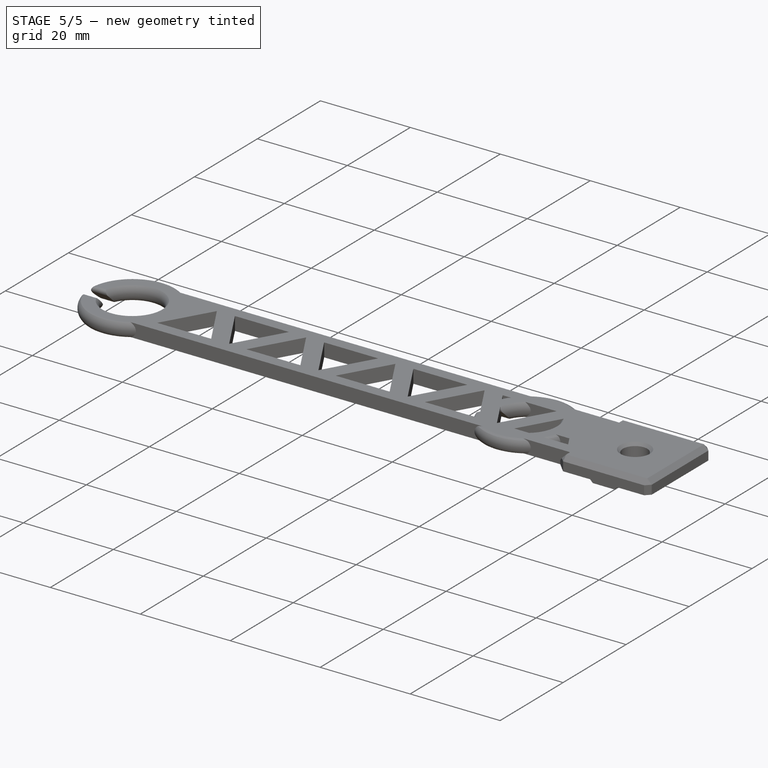
[diagram: stage 5 of 5 — iso view after this stage's code; geometry added in this stage tinted green]
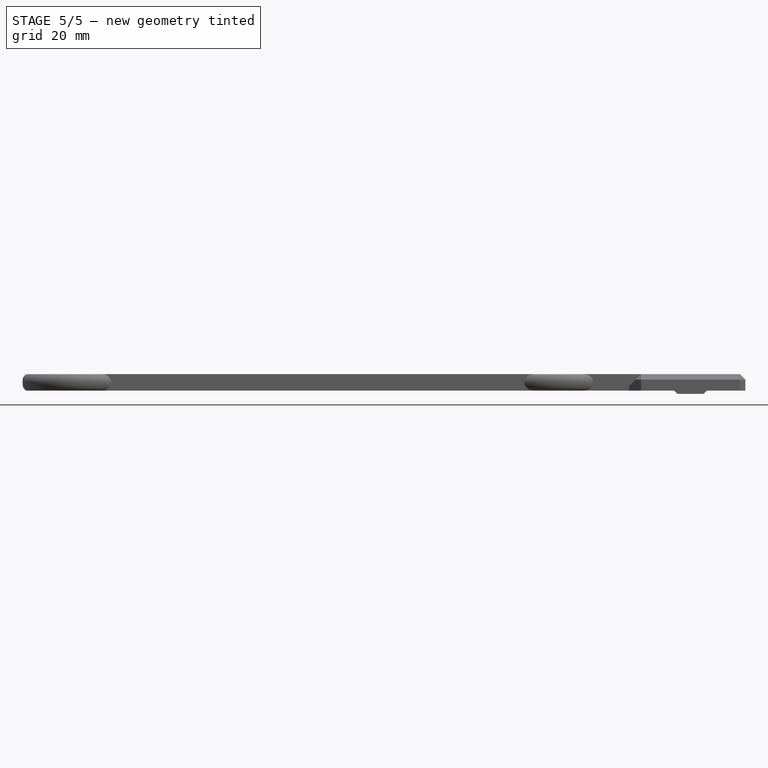
[diagram: stage 5 of 5 — front view after this stage's code; geometry added in this stage tinted green]
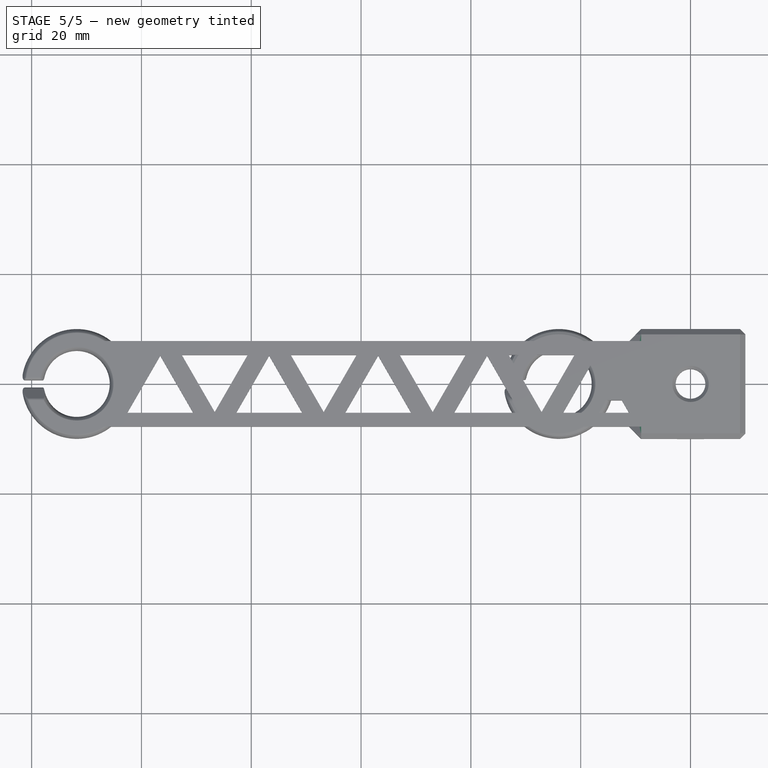
[diagram: stage 5 of 5 — top view after this stage's code; geometry added in this stage tinted green]
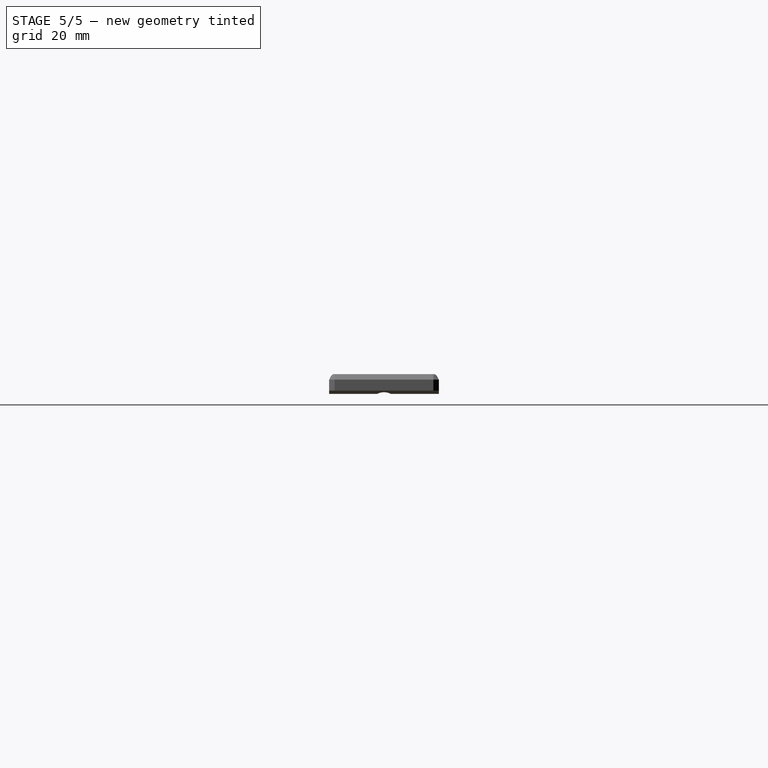
[diagram: stage 5 of 5 — right view after this stage's code; geometry added in this stage tinted green]
FEATURE [PartDesign::Chamfer] Chamfer
  Base = -> Pocket001 [Edge21,Edge20,Edge19,Edge11,Edge4,Edge1,Edge42,Edge37,Edge10]
  BaseFeature = -> Pocket001
  Placement = pos=(0,0,0) rot=(1,0,0;1.5708rad)
  Size = 1
FEATURE [PartDesign::Chamfer] Chamfer001
  Base = -> Chamfer [Edge51]
  BaseFeature = -> Chamfer
  Placement = pos=(0,0,0) rot=(1,0,0;1.5708rad)
  Size = 0.6
FEATURE [PartDesign::Fillet] Fillet
  Base = -> Chamfer001 [Edge22,Edge12]
  BaseFeature = -> Chamfer001
  Placement = pos=(0,0,0) rot=(1,0,0;1.5708rad)
  Radius = 1.9
FEATURE [PartDesign::Chamfer] Chamfer002
  Base = -> Fillet [Edge20,Edge109]
  BaseFeature = -> Fillet
  Placement = pos=(0,0,0) rot=(1,0,0;1.5708rad)
  Size = 0.3
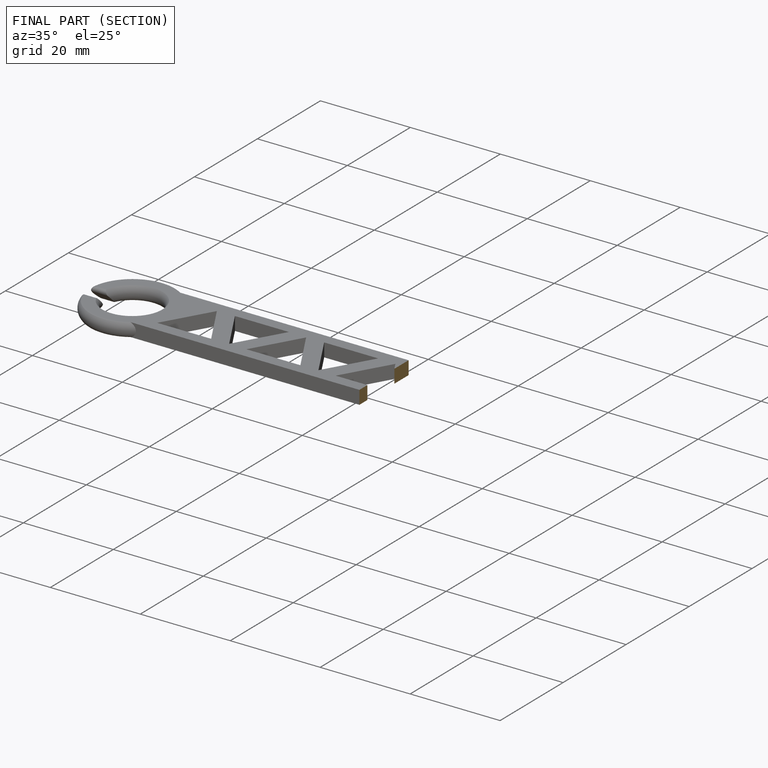
[diagram: finished part — half-section view (interior)]
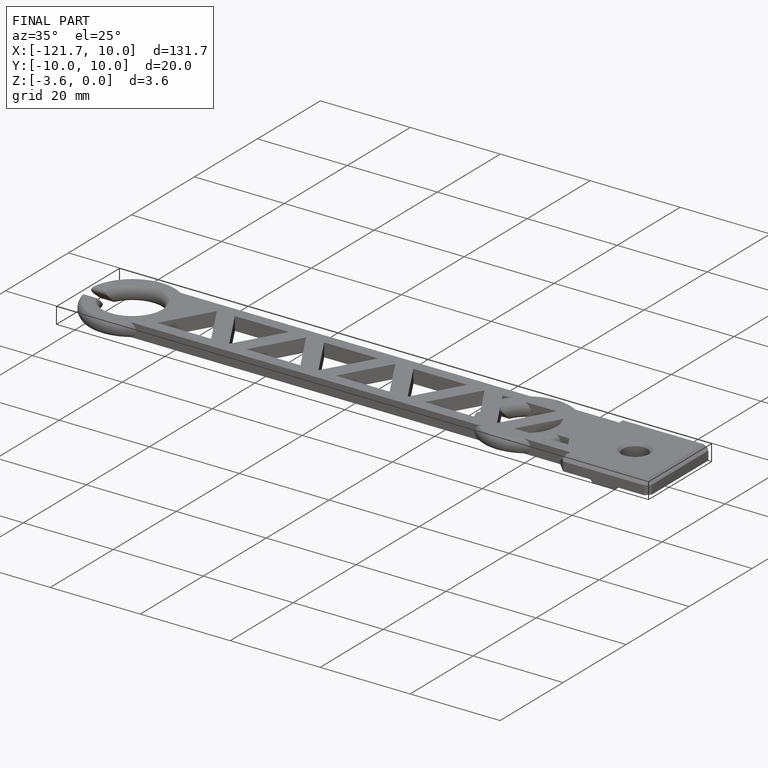
[diagram: finished part — iso view with bounding-box wireframe]
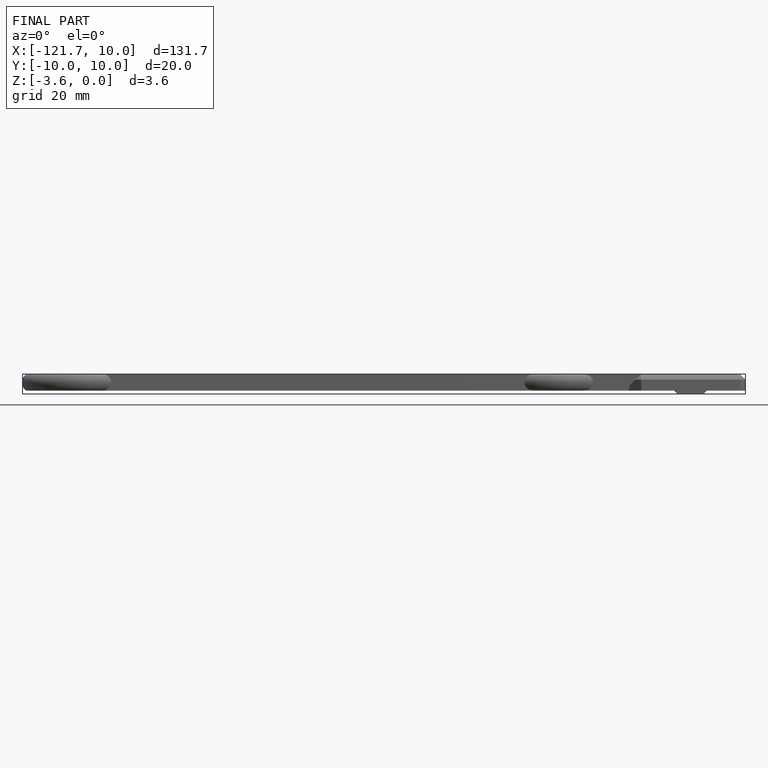
[diagram: finished part — front view with bounding-box wireframe]
